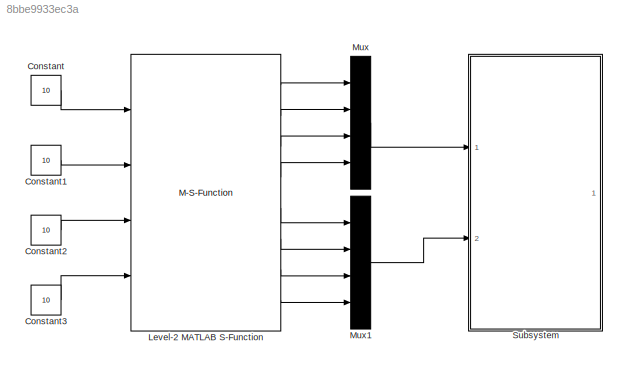
MODEL slx_8bbe9933ec3a
KIND model
CONFIG AbsTol = auto
CONFIG EnableMultiTasking = off
CONFIG FixedStep = auto
CONFIG MaxStep = auto
CONFIG MinStep = auto
CONFIG RelTol = 1e-3
CONFIG SampleTimeConstraint = Unconstrained
CONFIG SolverName = VariableStepAuto
CONFIG StartTime = 0.0
CONFIG StopTime = 10.0
BLOCK [Constant] Constant
  Value = 10
BLOCK [Constant] Constant1
  Value = 10
BLOCK [Constant] Constant2
  Value = 10
BLOCK [Constant] Constant3
  Value = 10
BLOCK [M-S-Function] Level-2 MATLAB S-Function
  FunctionName = convert
  Ports = [4, 8]
BLOCK [Mux] Mux
  DisplayOption = bar
  Ports = [4, 1]
BLOCK [Mux] Mux1
  DisplayOption = bar
  Ports = [4, 1]
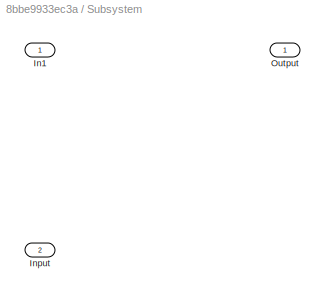
BLOCK [SubSystem] Subsystem
  Ports = [2, 1]
  RequestExecContextInheritance = off
BLOCK [Inport] Subsystem/In1
BLOCK [Inport] Subsystem/Input
  Port = 2
BLOCK [Outport] Subsystem/Output
LINE Constant1:1 -> Level-2 MATLAB S-Function:2
LINE Constant2:1 -> Level-2 MATLAB S-Function:3
LINE Constant3:1 -> Level-2 MATLAB S-Function:4
LINE Constant:1 -> Level-2 MATLAB S-Function:1
LINE Level-2 MATLAB S-Function:1 -> Mux:1
LINE Level-2 MATLAB S-Function:2 -> Mux:2
LINE Level-2 MATLAB S-Function:3 -> Mux:3
LINE Level-2 MATLAB S-Function:4 -> Mux:4
LINE Level-2 MATLAB S-Function:5 -> Mux1:1
LINE Level-2 MATLAB S-Function:6 -> Mux1:2
LINE Level-2 MATLAB S-Function:7 -> Mux1:3
LINE Level-2 MATLAB S-Function:8 -> Mux1:4
LINE Mux1:1 -> Subsystem:2
LINE Mux:1 -> Subsystem:1
